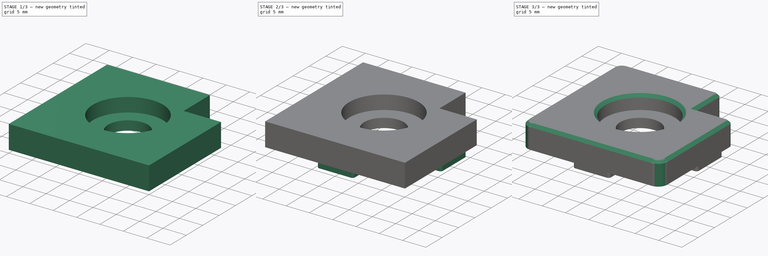
[diagram: build sequence overview — one tinted view per stage of 3, left to right]
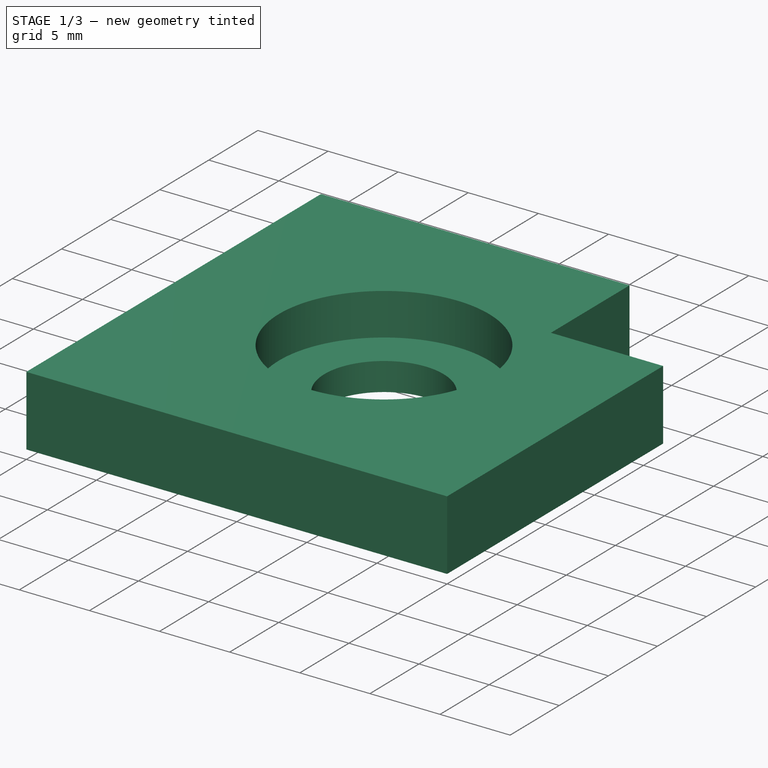
[diagram: stage 1 of 3 — iso view after this stage's code; geometry added in this stage tinted green]
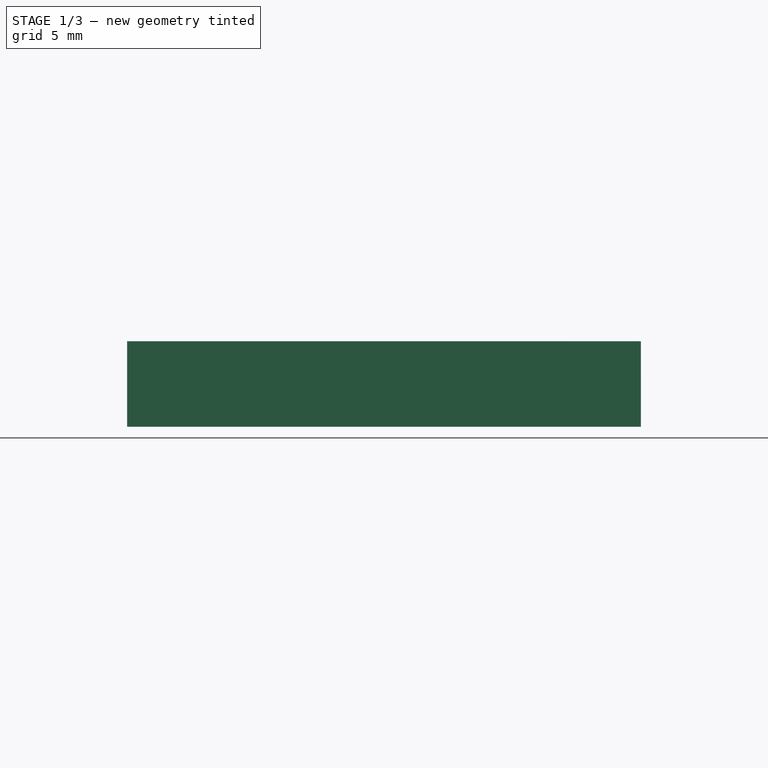
[diagram: stage 1 of 3 — front view after this stage's code; geometry added in this stage tinted green]
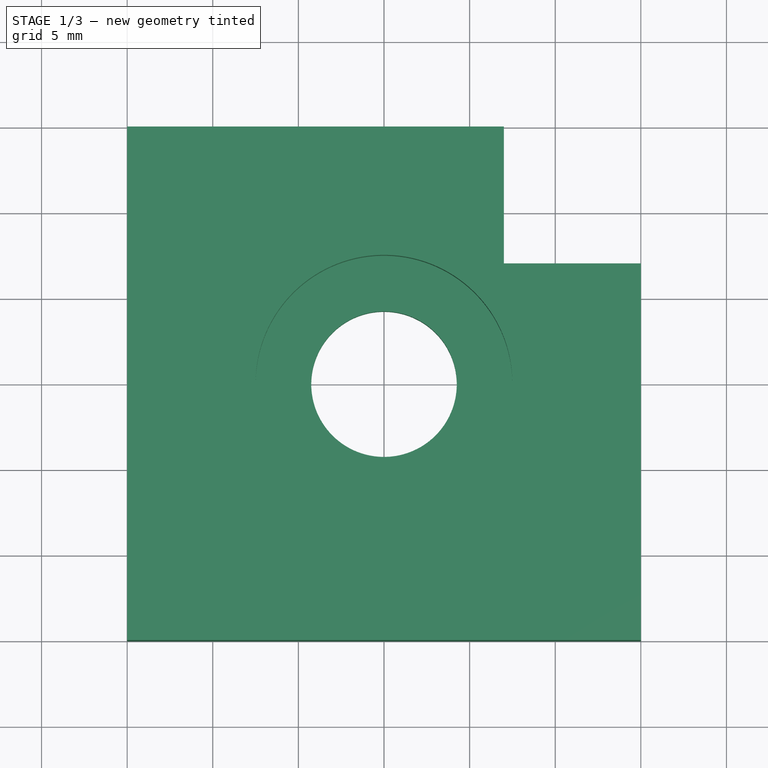
[diagram: stage 1 of 3 — top view after this stage's code; geometry added in this stage tinted green]
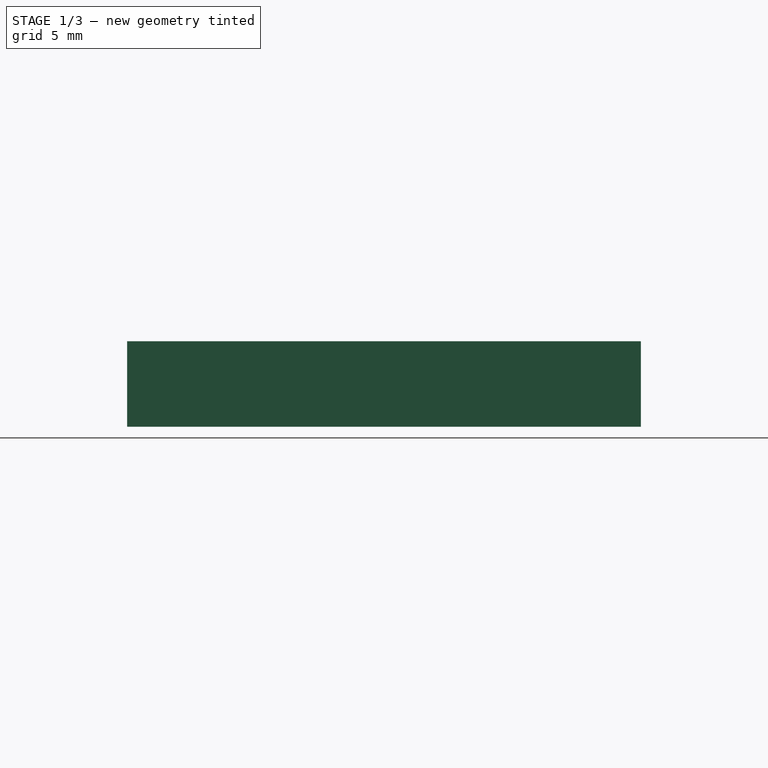
[diagram: stage 1 of 3 — right view after this stage's code; geometry added in this stage tinted green]
FCSTD DOCUMENT  (FreeCAD 0.19R24291 (Git))
Label: corner-endcap
License: Other
LicenseURL: GPL3
objects: Sketcher::SketchObject×4, PartDesign::Fillet×3, PartDesign::Pad×2, PartDesign::Pocket×2, PartDesign::Chamfer×1, PartDesign::Body×1
note: 21 computed .brp shape members not serialized (recipe doc carries the construction recipe); baked Part::Feature solids carry a one-line shape summary decoded from their .brp

FEATURE [Sketcher::SketchObject] Sketch
  FullyConstrained = true
  MapMode = 5
  Support = -> [XY_Plane]
  sketch-geometry (6):
    g0: LineSegment StartX=0 StartY=0 StartZ=0 EndX=0 EndY=30 EndZ=0
    g1: LineSegment StartX=0 StartY=30 StartZ=0 EndX=22 EndY=30 EndZ=0
    g2: LineSegment StartX=22 StartY=30 StartZ=0 EndX=22 EndY=22 EndZ=0
    g3: LineSegment StartX=22 StartY=22 StartZ=0 EndX=30 EndY=22 EndZ=0
    g4: LineSegment StartX=30 StartY=22 StartZ=0 EndX=30 EndY=0 EndZ=0
    g5: LineSegment StartX=30 StartY=0 StartZ=0 EndX=0 EndY=0 EndZ=0
  constraints (17):
    c: Coincident(g-1,g0)
    c: Vertical(g0)
    c: Coincident(g0,g1)
    c: Horizontal(g1)
    c: Coincident(g1,g2)
    c: Vertical(g2)
    c: Coincident(g2,g3)
    c: Horizontal(g3)
    c: Coincident(g3,g4)
    c: Vertical(g4)
    c: Coincident(g4,g5)
    c: Coincident(g5,g0)
    c: Horizontal(g5)
    c: DistanceX(g5,g5) = 30
    c: DistanceX(g1,g1) = 22
    c: DistanceY(g0,g0) = 30
    c: DistanceY(g4,g4) = 22
FEATURE [PartDesign::Pad] Pad
  Direction = (1,1,1)
  Length = 5
  Length2 = 100
  Profile = -> Sketch
  Type = 0
FEATURE [Sketcher::SketchObject] Sketch001
  FullyConstrained = true
  MapMode = 5
  Placement = pos=(0,0,5) rot=(0,0,1;0rad)
  Support = -> [Pad]
  sketch-geometry (1):
    g0: Circle CenterX=15 CenterY=15 CenterZ=0 NormalX=0 NormalY=0 NormalZ=1 AngleXU=0 Radius=4.25
  constraints (3):
    c: Radius(g0) = 4.25
    c: DistanceX(g-1,g0) = 15
    c: DistanceY(g-1,g0) = 15
FEATURE [PartDesign::Pocket] Pocket
  BaseFeature = -> Pad
  Length = 5
  Length2 = 100
  Profile = -> Sketch001
  Type = 1
FEATURE [Sketcher::SketchObject] Sketch002
  FullyConstrained = true
  MapMode = 5
  Placement = pos=(0,0,5) rot=(0,0,1;0rad)
  Support = -> [Pocket]
  sketch-geometry (1):
    g0: Circle CenterX=15 CenterY=15 CenterZ=0 NormalX=0 NormalY=0 NormalZ=1 AngleXU=0 Radius=7.5
  constraints (3):
    c: DistanceY(g-1,g0) = 15
    c: DistanceX(g-1,g0) = 15
    c: Radius(g0) = 7.5
FEATURE [PartDesign::Pocket] Pocket001
  BaseFeature = -> Pocket
  Length = 3
  Length2 = 100
  Profile = -> Sketch002
  Type = 0
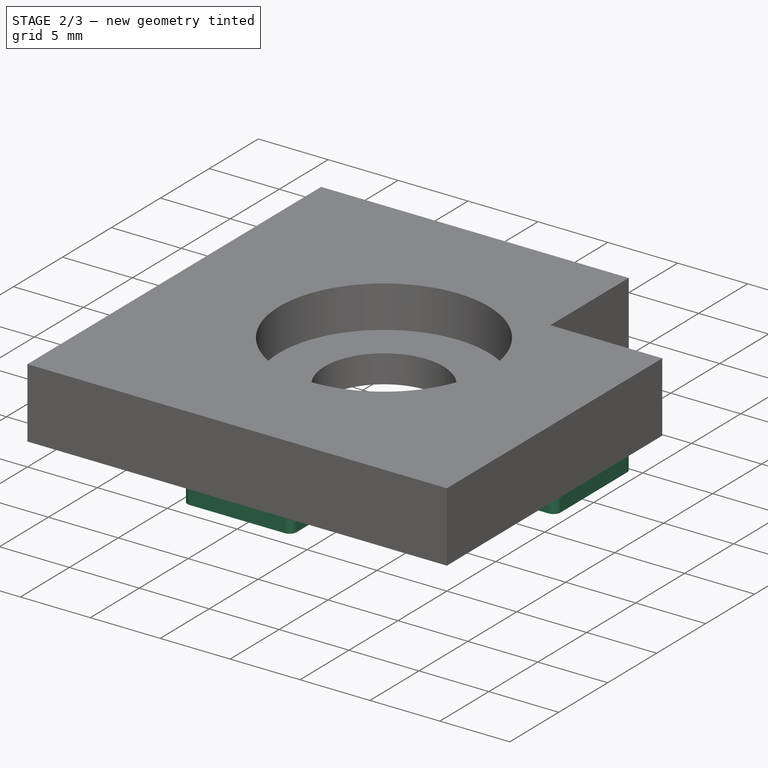
[diagram: stage 2 of 3 — iso view after this stage's code; geometry added in this stage tinted green]
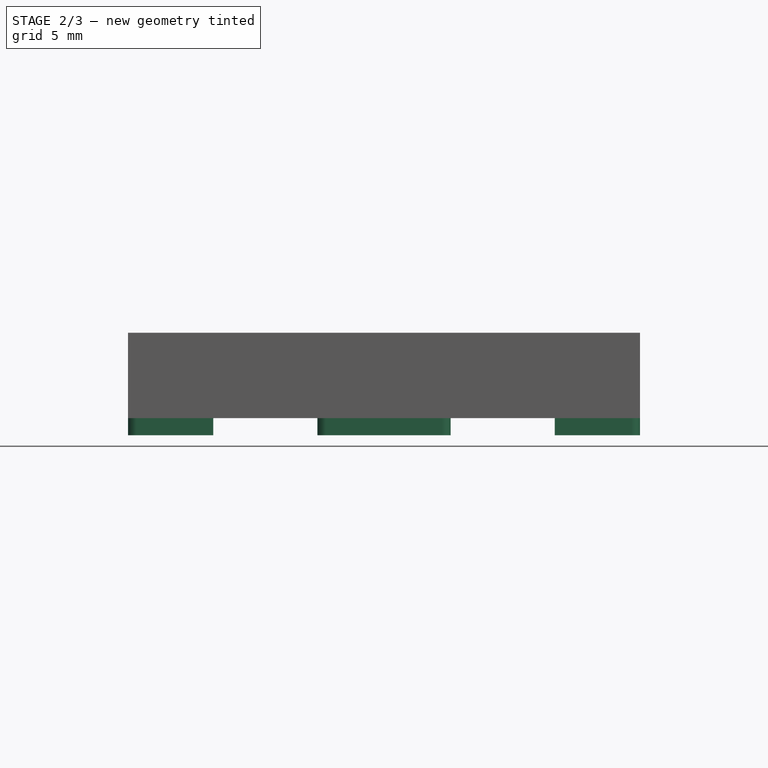
[diagram: stage 2 of 3 — front view after this stage's code; geometry added in this stage tinted green]
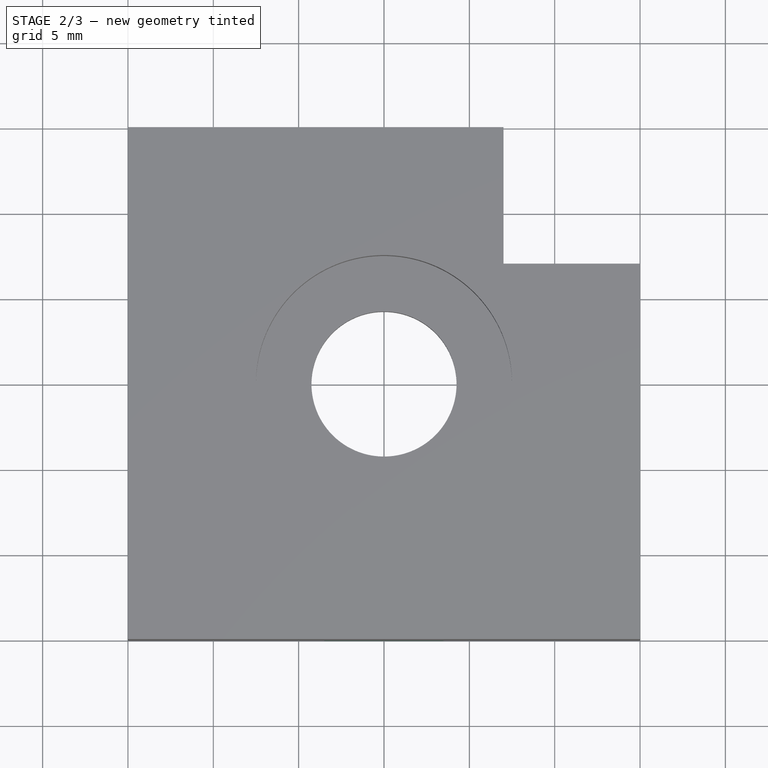
[diagram: stage 2 of 3 — top view after this stage's code; geometry added in this stage tinted green]
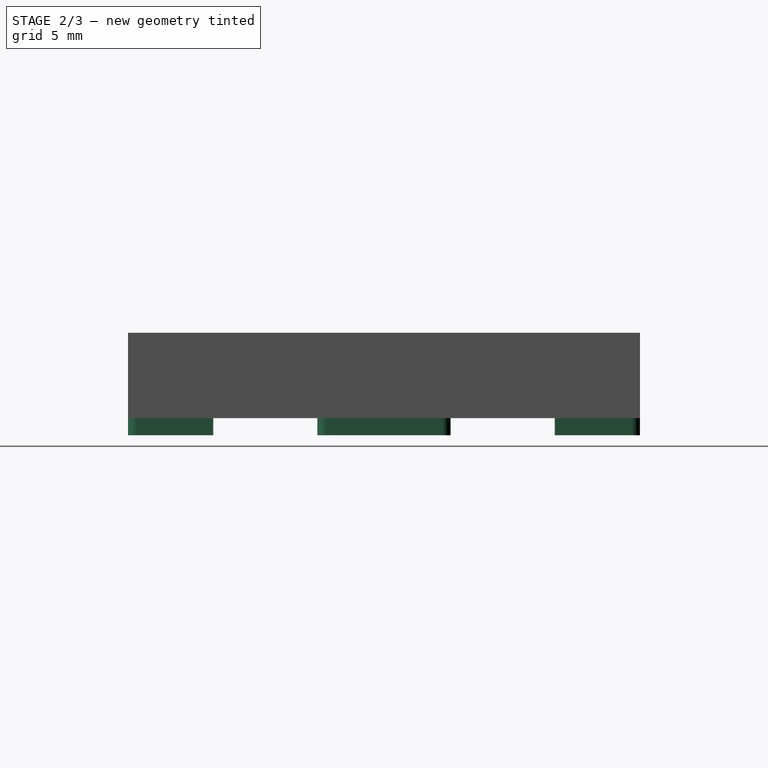
[diagram: stage 2 of 3 — right view after this stage's code; geometry added in this stage tinted green]
FEATURE [Sketcher::SketchObject] Sketch003
  FullyConstrained = true
  MapMode = 5
  Placement = pos=(0,0,0) rot=(1,0,0;3.14159rad)
  Support = -> [Pocket001]
  sketch-geometry (16):
    g0: LineSegment StartX=11.1 StartY=0 StartZ=0 EndX=18.9 EndY=0 EndZ=0
    g1: LineSegment StartX=18.9 StartY=0 StartZ=0 EndX=18.9 EndY=-5 EndZ=0
    g2: LineSegment StartX=18.9 StartY=-5 StartZ=0 EndX=11.1 EndY=-5 EndZ=0
    g3: LineSegment StartX=11.1 StartY=-5 StartZ=0 EndX=11.1 EndY=0 EndZ=0
    g4: LineSegment StartX=11.1 StartY=-25 StartZ=0 EndX=18.9 EndY=-25 EndZ=0
    g5: LineSegment StartX=18.9 StartY=-25 StartZ=0 EndX=18.9 EndY=-30 EndZ=0
    g6: LineSegment StartX=18.9 StartY=-30 StartZ=0 EndX=11.1 EndY=-30 EndZ=0
    g7: LineSegment StartX=11.1 StartY=-30 StartZ=0 EndX=11.1 EndY=-25 EndZ=0
    g8: LineSegment StartX=0 StartY=-11.1 StartZ=0 EndX=5 EndY=-11.1 EndZ=0
    g9: LineSegment StartX=5 StartY=-11.1 StartZ=0 EndX=5 EndY=-18.9 EndZ=0
    g10: LineSegment StartX=5 StartY=-18.9 StartZ=0 EndX=0 EndY=-18.9 EndZ=0
    g11: LineSegment StartX=0 StartY=-18.9 StartZ=0 EndX=0 EndY=-11.1 EndZ=0
    g12: LineSegment StartX=25 StartY=-11.1 StartZ=0 EndX=30 EndY=-11.1 EndZ=0
    g13: LineSegment StartX=30 StartY=-11.1 StartZ=0 EndX=30 EndY=-18.9 EndZ=0
    g14: LineSegment StartX=30 StartY=-18.9 StartZ=0 EndX=25 EndY=-18.9 EndZ=0
    g15: LineSegment StartX=25 StartY=-18.9 StartZ=0 EndX=25 EndY=-11.1 EndZ=0
  constraints (48):
    c: Coincident(g0,g1)
    c: Coincident(g1,g2)
    c: Coincident(g2,g3)
    c: Coincident(g3,g0)
    c: Horizontal(g0)
    c: Horizontal(g2)
    c: Vertical(g1)
    c: Vertical(g3)
    c: Coincident(g4,g5)
    c: Coincident(g5,g6)
    c: Coincident(g6,g7)
    c: Coincident(g7,g4)
    c: Horizontal(g4)
    c: Horizontal(g6)
    c: Vertical(g5)
    c: Vertical(g7)
    c: Coincident(g8,g9)
    c: Coincident(g9,g10)
    c: Coincident(g10,g11)
    c: Coincident(g11,g8)
    c: Horizontal(g8)
    c: Horizontal(g10)
    c: Vertical(g9)
    c: Vertical(g11)
    c: Coincident(g12,g13)
    c: Coincident(g13,g14)
    c: Coincident(g14,g15)
    c: Coincident(g15,g12)
    c: Horizontal(g12)
    c: Horizontal(g14)
    c: Vertical(g13)
    c: Vertical(g15)
    c: DistanceX(g2,g2) = 7.8
    c: DistanceX(g4,g4) = 7.8
    c: DistanceX(g8,g8) = 5
    c: DistanceX(g12,g12) = 5
    c: DistanceY(g1,g1) = 5
    c: DistanceY(g9,g9) = 7.8
    c: DistanceY(g15,g15) = 7.8
    c: DistanceY(g5,g5) = 5
    c: DistanceY(g-1,g0) = 0
    c: DistanceY(g4,g-1) = 25
    c: DistanceY(g8,g-1) = 11.1
    c: DistanceY(g12,g-1) = 11.1
    c: DistanceX(g-1,g0) = 11.1
    c: DistanceX(g-1,g4) = 11.1
    c: DistanceX(g8,g-1) = 0
    c: DistanceX(g-1,g12) = 25
FEATURE [PartDesign::Pad] Pad001
  BaseFeature = -> Pocket001
  Direction = (1,1,1)
  Length = 1
  Length2 = 100
  Profile = -> Sketch003
  Type = 0
FEATURE [PartDesign::Fillet] Fillet
  Base = -> Pad001 [Edge44,Edge43,Edge35,Edge34,Edge48,Edge47,Edge60,Edge56]
  BaseFeature = -> Pad001
  Radius = 0.5
  SupportTransform = false
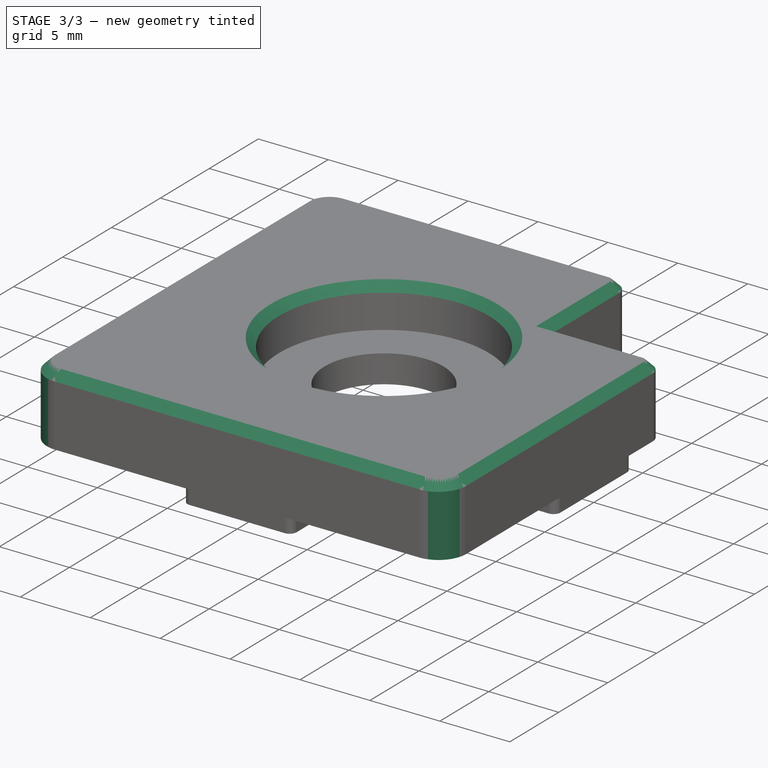
[diagram: stage 3 of 3 — iso view after this stage's code; geometry added in this stage tinted green]
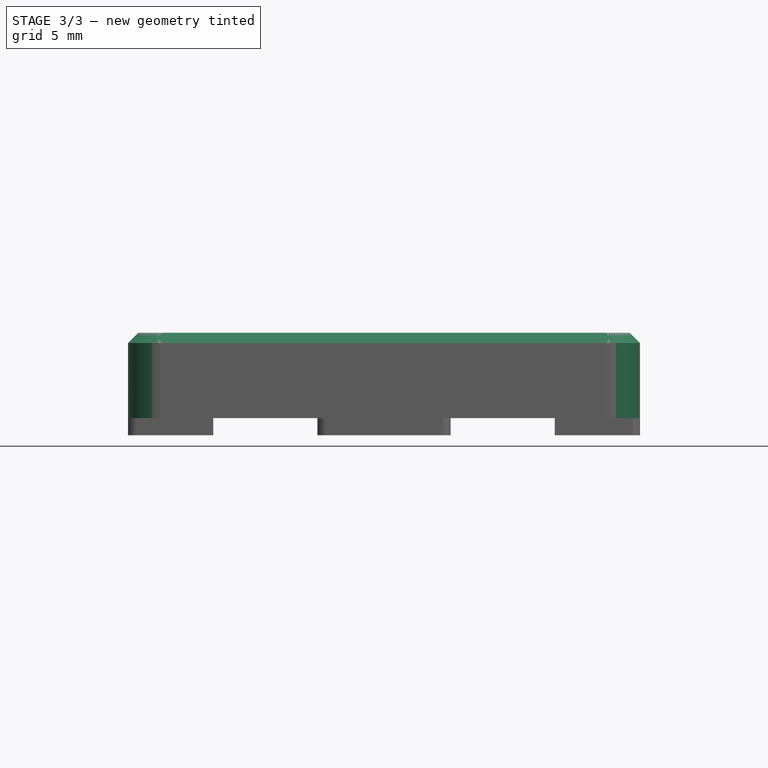
[diagram: stage 3 of 3 — front view after this stage's code; geometry added in this stage tinted green]
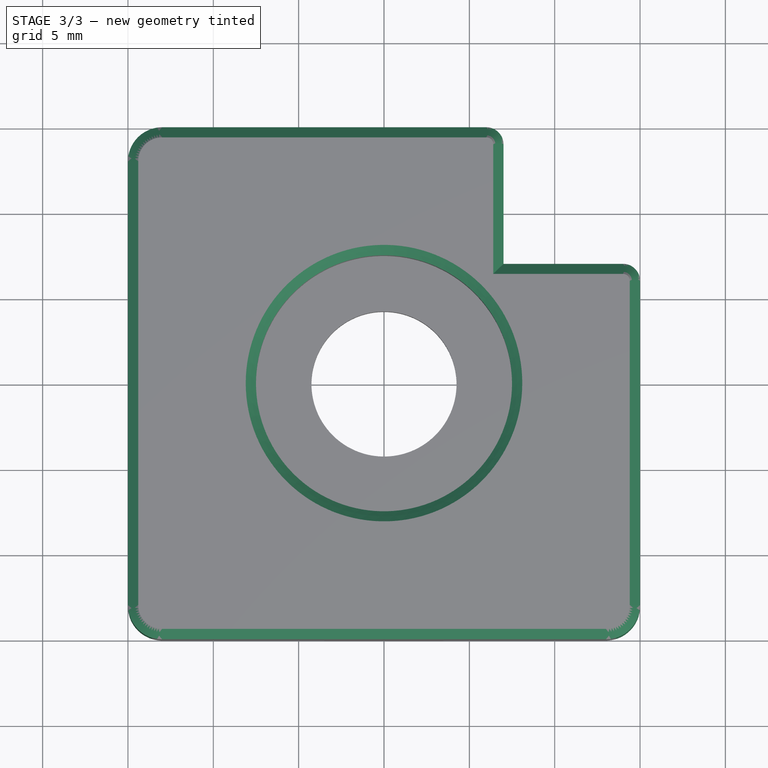
[diagram: stage 3 of 3 — top view after this stage's code; geometry added in this stage tinted green]
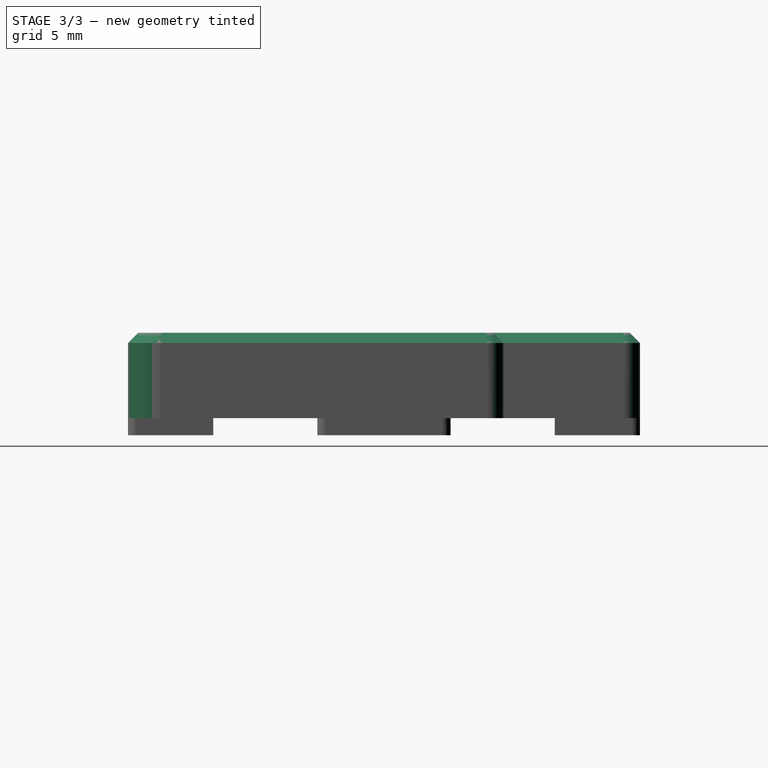
[diagram: stage 3 of 3 — right view after this stage's code; geometry added in this stage tinted green]
FEATURE [PartDesign::Fillet] Fillet001
  Base = -> Fillet [Edge57,Edge54,Edge52]
  BaseFeature = -> Fillet
  Radius = 2
  SupportTransform = false
FEATURE [PartDesign::Fillet] Fillet002
  Base = -> Fillet001 [Edge82,Edge77]
  BaseFeature = -> Fillet001
  Radius = 1
  SupportTransform = false
FEATURE [PartDesign::Chamfer] Chamfer
  Angle = 45
  Base = -> Fillet002 [Face34]
  BaseFeature = -> Fillet002
  ChamferType = 0
  FlipDirection = false
  Size = 0.6
  Size2 = 1
  SupportTransform = false
FEATURE [PartDesign::Body] Body
  Group = -> [Sketch,Pad,Sketch001,Pocket,Sketch002,Pocket001,Sketch003,Pad001,Fillet,Fillet001,Fillet002,Chamfer]
  Origin = -> Origin
  Placement = pos=(0,0,0) rot=(0,1,0;3.14159rad)
  Tip = -> Chamfer
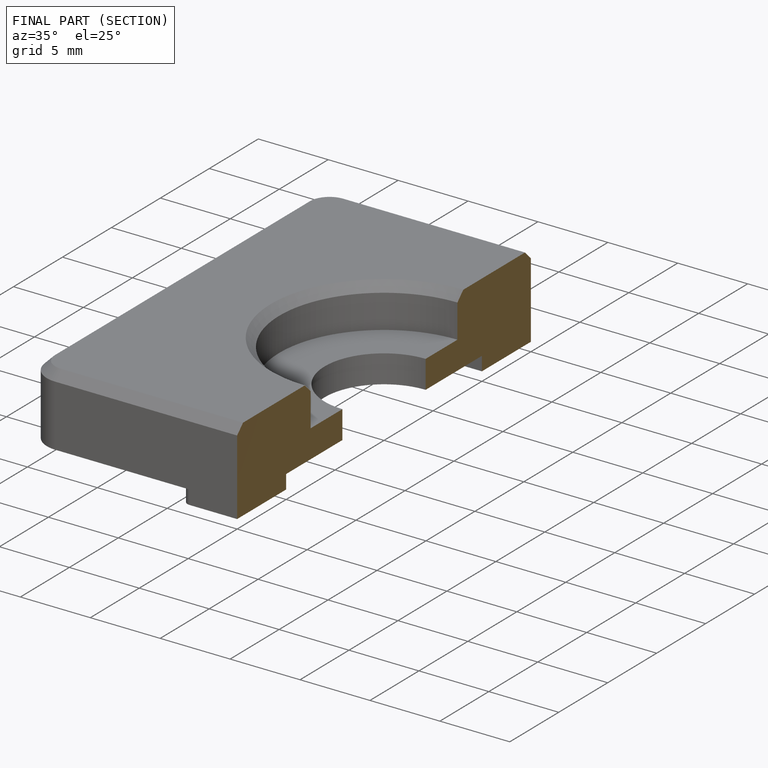
[diagram: finished part — half-section view (interior)]
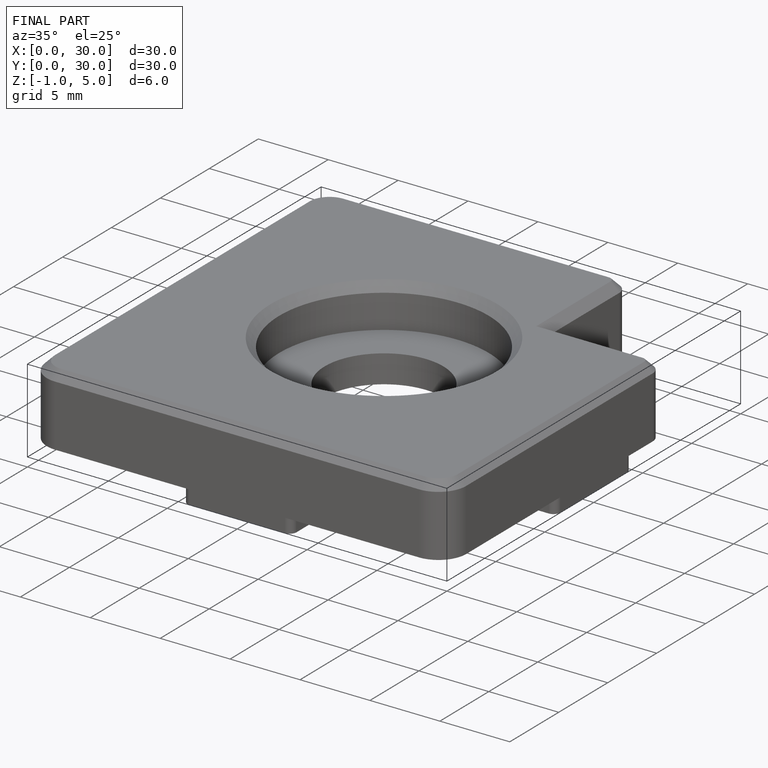
[diagram: finished part — iso view with bounding-box wireframe]
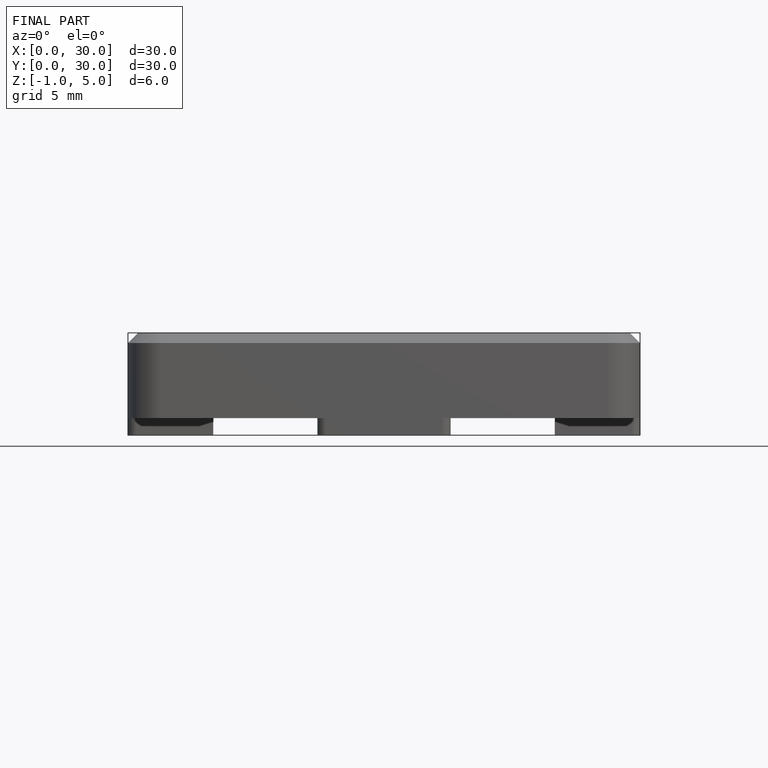
[diagram: finished part — front view with bounding-box wireframe]
